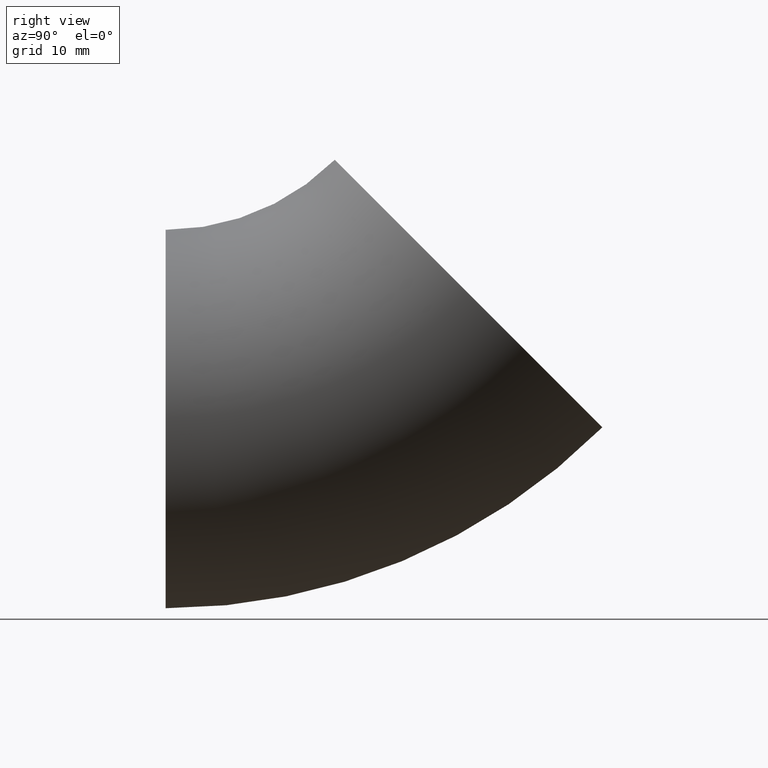
[diagram: clean part render]
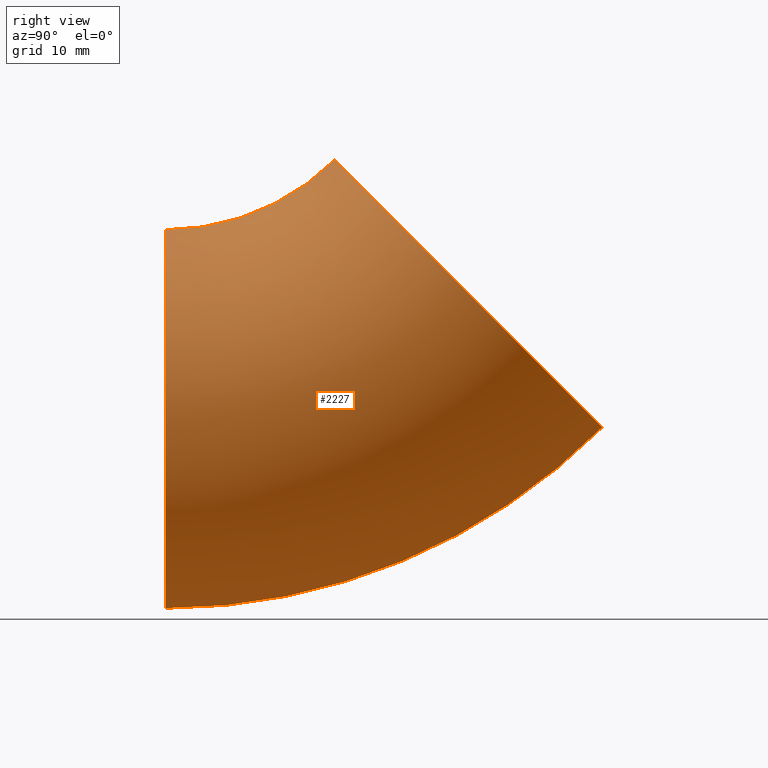
[diagram: same view with one face highlighted and labeled with its STEP entity id]
A machine part, right view. The second image highlights one B-rep face of the part: STEP entity #2227.
In plain terms, the highlighted toroidal blend (fillet) surface has major radius 48 mm and minor (blend) radius 21.2 mm.
Its self-contained STEP definition (entity closure, byte-faithful):
#136 = DIRECTION ( 'NONE',  ( 0.0000000000000000000, 0.0000000000000000000, 1.000000000000000000 ) ) ;
#2227 = ADVANCED_FACE ( 'NONE', ( #7123 ), #4034, .T. ) ;
#2608 = CARTESIAN_POINT ( 'NONE',  ( 0.0000000000000000000, 0.0000000000000000000, -48.00000000000000000 ) ) ;
#2632 = VERTEX_POINT ( 'NONE', #9993 ) ;
#2667 = CIRCLE ( 'NONE', #4460, 21.19999999999999900 ) ;
#2701 = DIRECTION ( 'NONE',  ( -1.000000000000000000, -0.0000000000000000000, -0.0000000000000000000 ) ) ;
#3373 = AXIS2_PLACEMENT_3D ( 'NONE', #5478, #3587, #10558 ) ;
#3568 = VERTEX_POINT ( 'NONE', #6362 ) ;
#3587 = DIRECTION ( 'NONE',  ( 0.0000000000000000000, 0.7071067811865473500, 0.7071067811865476800 ) ) ;
#3929 = CARTESIAN_POINT ( 'NONE',  ( 0.0000000000000000000, 0.0000000000000000000, -26.80000000000000100 ) ) ;
#3959 = ORIENTED_EDGE ( 'NONE', *, *, #10120, .T. ) ;
#4034 = TOROIDAL_SURFACE ( 'NONE', #6612, 48.00000000000000000, 21.19999999999999900 ) ;
#4460 = AXIS2_PLACEMENT_3D ( 'NONE', #2608, #6116, #6859 ) ;
#4646 = EDGE_CURVE ( 'NONE', #5658, #3568, #2667, .T. ) ;
#5010 = ORIENTED_EDGE ( 'NONE', *, *, #7792, .F. ) ;
#5478 = CARTESIAN_POINT ( 'NONE',  ( 0.0000000000000000000, 33.94112549695429200, -33.94112549695427100 ) ) ;
#5658 = VERTEX_POINT ( 'NONE', #3929 ) ;
#5964 = CARTESIAN_POINT ( 'NONE',  ( 2.596251214192388800E-015, 18.95046173579948600, -18.95046173579946800 ) ) ;
#6116 = DIRECTION ( 'NONE',  ( 0.0000000000000000000, 1.000000000000000000, 0.0000000000000000000 ) ) ;
#6125 = EDGE_CURVE ( 'NONE', #2632, #3568, #9391, .T. ) ;
#6362 = CARTESIAN_POINT ( 'NONE',  ( 0.0000000000000000000, 0.0000000000000000000, -69.20000000000000300 ) ) ;
#6612 = AXIS2_PLACEMENT_3D ( 'NONE', #9561, #2701, #136 ) ;
#6816 = ORIENTED_EDGE ( 'NONE', *, *, #6125, .F. ) ;
#6859 = DIRECTION ( 'NONE',  ( 0.0000000000000000000, 0.0000000000000000000, 1.000000000000000000 ) ) ;
#7123 = FACE_OUTER_BOUND ( 'NONE', #8974, .T. ) ;
#7246 = AXIS2_PLACEMENT_3D ( 'NONE', #11152, #9373, #7629 ) ;
#7629 = DIRECTION ( 'NONE',  ( 0.0000000000000000000, 0.0000000000000000000, 1.000000000000000000 ) ) ;
#7792 = EDGE_CURVE ( 'NONE', #7943, #2632, #11074, .T. ) ;
#7866 = DIRECTION ( 'NONE',  ( -1.000000000000000000, -0.0000000000000000000, -0.0000000000000000000 ) ) ;
#7943 = VERTEX_POINT ( 'NONE', #5964 ) ;
#8165 = CIRCLE ( 'NONE', #10620, 26.80000000000000100 ) ;
#8634 = DIRECTION ( 'NONE',  ( 0.0000000000000000000, 0.0000000000000000000, 1.000000000000000000 ) ) ;
#8974 = EDGE_LOOP ( 'NONE', ( #6816, #5010, #3959, #10576 ) ) ;
#9373 = DIRECTION ( 'NONE',  ( -1.000000000000000000, -0.0000000000000000000, -0.0000000000000000000 ) ) ;
#9391 = CIRCLE ( 'NONE', #7246, 69.20000000000000300 ) ;
#9561 = CARTESIAN_POINT ( 'NONE',  ( 0.0000000000000000000, 0.0000000000000000000, 0.0000000000000000000 ) ) ;
#9993 = CARTESIAN_POINT ( 'NONE',  ( 0.0000000000000000000, 48.93178925810910600, -48.93178925810907700 ) ) ;
#10120 = EDGE_CURVE ( 'NONE', #7943, #5658, #8165, .T. ) ;
#10488 = CARTESIAN_POINT ( 'NONE',  ( 2.596251214192388800E-015, 0.0000000000000000000, 0.0000000000000000000 ) ) ;
#10558 = DIRECTION ( 'NONE',  ( 0.0000000000000000000, -0.7071067811865476800, 0.7071067811865473500 ) ) ;
#10576 = ORIENTED_EDGE ( 'NONE', *, *, #4646, .T. ) ;
#10620 = AXIS2_PLACEMENT_3D ( 'NONE', #10488, #7866, #8634 ) ;
#11074 = CIRCLE ( 'NONE', #3373, 21.19999999999999900 ) ;
#11152 = CARTESIAN_POINT ( 'NONE',  ( 0.0000000000000000000, 0.0000000000000000000, 0.0000000000000000000 ) ) ;